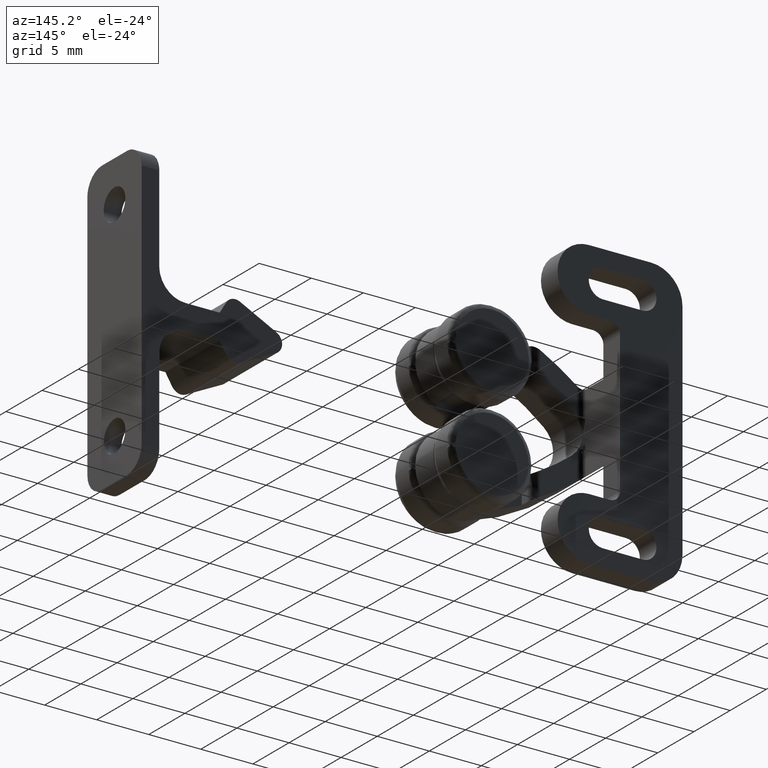
[diagram: clean part render]
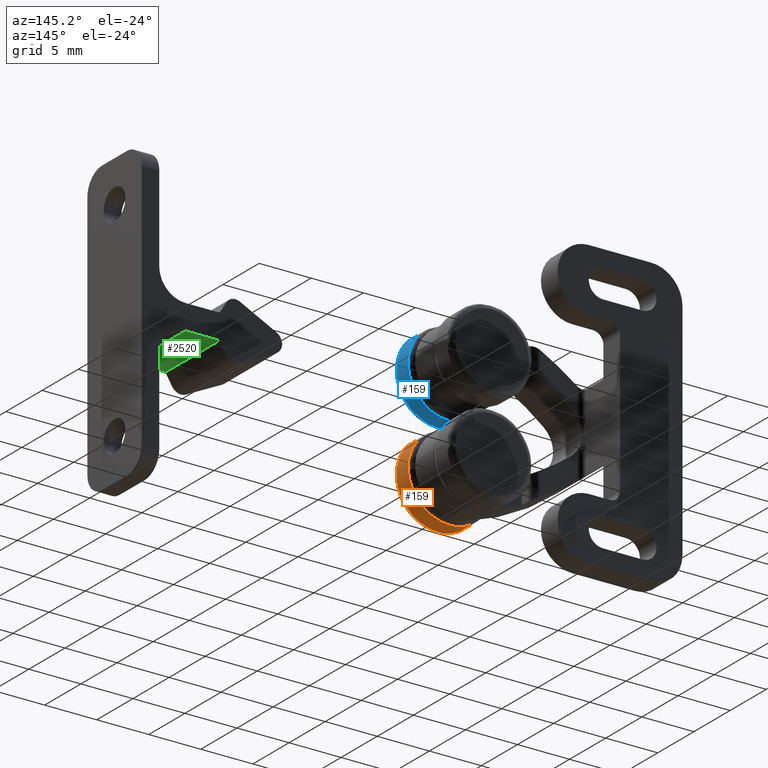
[diagram: same view with three faces highlighted in distinct colors, each labeled with its STEP entity id]
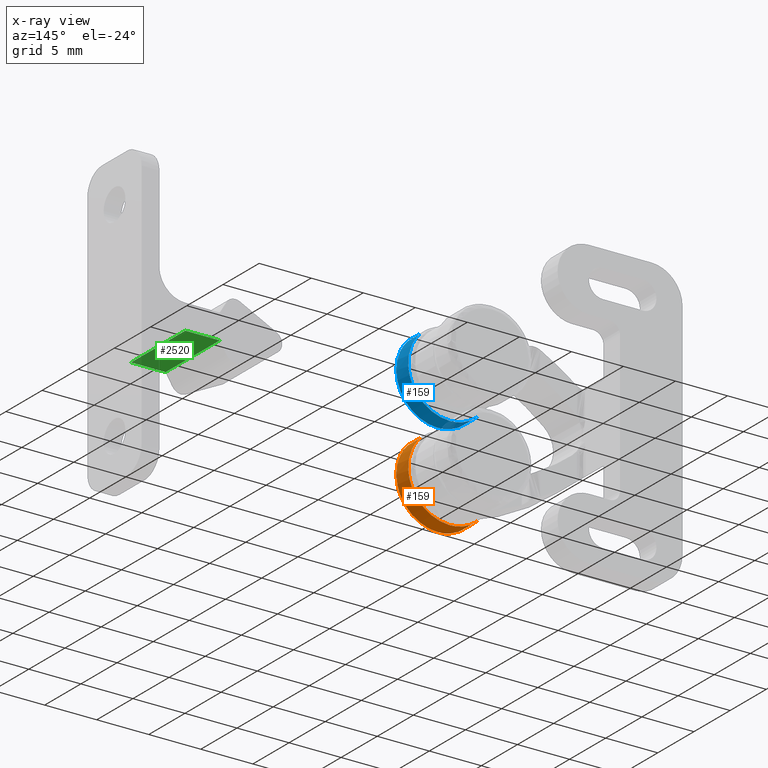
[diagram: x-ray of the same camera — body ghosted, the three highlighted faces saturated]
A machine part, auxiliary view with three faces highlighted in distinct colors.
The next image is the same camera in x-ray (body ghosted, the three faces saturated) — at least one of them is partly hidden behind the body in this view.
Their STEP definitions:

[orange] entity #159 — the highlighted face is a freeform B-spline surface patch.
#44=CARTESIAN_POINT('',(12.760726055684410,-9.808749999279462,-2.914854757615499));
#45=CARTESIAN_POINT('',(15.513379172849758,-9.808749999279463,-5.501697529760492));
#46=CARTESIAN_POINT('',(18.253418302775010,-9.808749999279462,-2.901497484049150));
#47=CARTESIAN_POINT('',(21.154915786824155,-9.808749999279462,-0.148079181274134));
#48=CARTESIAN_POINT('',(18.401497484049148,-9.808749999279462,2.753418302775015));
#49=CARTESIAN_POINT('',(12.760726055684410,-11.542281250813645,-2.914854757615499));
#50=CARTESIAN_POINT('',(15.513379172849758,-11.542281250813637,-5.501697529760492));
#51=CARTESIAN_POINT('',(18.253418302775010,-11.542281250813639,-2.901497484049150));
#52=CARTESIAN_POINT('',(21.154915786824155,-11.542281250813637,-0.148079181274134));
#53=CARTESIAN_POINT('',(18.401497484049148,-11.542281250813639,2.753418302775015));
#61=(BOUNDED_SURFACE()B_SPLINE_SURFACE(2,1,((#44,#49),(#45,#50),(#46,#51),(#47,#52),(#48,#53)),.UNSPECIFIED.,.F.,.F.,.U.)B_SPLINE_SURFACE_WITH_KNOTS((3,2,3),(2,2),(0.0,6.362320318050738,12.989737316020260),(0.0,1.0),.UNSPECIFIED.)GEOMETRIC_REPRESENTATION_ITEM()RATIONAL_B_SPLINE_SURFACE(((0.977505800795127,0.977505800795127),(0.718822509939086,0.718822509939086),(1.0,1.0),(0.707106781186548,0.707106781186548),(1.0,1.0)))REPRESENTATION_ITEM('')SURFACE());
#62=CARTESIAN_POINT('',(12.760726033391810,-11.499999999964500,-2.914854736665723));
#63=VERTEX_POINT('',#62);
#64=CARTESIAN_POINT('',(15.500000000000000,-11.500000000000000,-4.0));
#65=VERTEX_POINT('',#64);
#66=CARTESIAN_POINT('',(12.760726033391810,-11.499999999964500,-2.914854736665723));
#67=CARTESIAN_POINT('',(13.024047772024240,-11.499999999925290,-3.162501344198948));
#68=CARTESIAN_POINT('',(13.502186852472020,-11.499999999886690,-3.502707219051742));
#69=CARTESIAN_POINT('',(14.184635568627320,-11.499999999889869,-3.791814424022823));
#70=CARTESIAN_POINT('',(14.808522952792430,-11.499999999922350,-3.957313997093072));
#71=CARTESIAN_POINT('',(15.232828271988289,-11.499999999965050,-4.000041486523225));
#72=CARTESIAN_POINT('',(15.500000000000000,-11.500000000000000,-4.0));
#73=B_SPLINE_CURVE_WITH_KNOTS('',3,(#66,#67,#68,#69,#70,#71,#72),.UNSPECIFIED.,.F.,.U.,(4,1,1,1,4),(9.511587E-009,1.084394768548775,1.744453210007001,2.215929146586945,3.017435822828742),.UNSPECIFIED.);
#74=EDGE_CURVE('',#63,#65,#73,.T.);
#75=ORIENTED_EDGE('',*,*,#74,.F.);
#76=CARTESIAN_POINT('',(12.760726070855910,-9.850000000021005,-2.914854771873121));
#77=VERTEX_POINT('',#76);
#78=CARTESIAN_POINT('',(12.760726070855910,-9.850000000021005,-2.914854771873121));
#79=CARTESIAN_POINT('',(12.760726033391810,-11.499999999964500,-2.914854736665723));
#80=QUASI_UNIFORM_CURVE('',1,(#78,#79),.UNSPECIFIED.,.F.,.U.);
#81=EDGE_CURVE('',#77,#63,#80,.T.);
#82=ORIENTED_EDGE('',*,*,#81,.F.);
#83=CARTESIAN_POINT('',(15.500000000000000,-9.850000000000000,-4.0));
#84=VERTEX_POINT('',#83);
#85=CARTESIAN_POINT('',(12.760726070855910,-9.850000000021005,-2.914854771873121));
#86=CARTESIAN_POINT('',(12.932495578686000,-9.850000000046761,-3.076308001416002));
#87=CARTESIAN_POINT('',(13.267481290167870,-9.850000000082021,-3.339456813898130));
#88=CARTESIAN_POINT('',(13.777136618862610,-9.850000000101572,-3.622417105340806));
#89=CARTESIAN_POINT('',(14.274776435261471,-9.850000000097767,-3.819552674851656));
#90=CARTESIAN_POINT('',(14.839944868293040,-9.850000000070011,-3.962378612511117));
#91=CARTESIAN_POINT('',(15.264263161759370,-9.850000000028858,-4.000022038407404));
#92=CARTESIAN_POINT('',(15.500000000000000,-9.850000000000000,-4.0));
#93=B_SPLINE_CURVE_WITH_KNOTS('',3,(#85,#86,#87,#88,#89,#90,#91,#92),.UNSPECIFIED.,.F.,.U.,(4,1,1,1,1,4),(9.510134E-009,0.707211227877700,1.272982600642694,1.744453180284088,2.310224553049056,3.017435771416567),.UNSPECIFIED.);
#94=EDGE_CURVE('',#77,#84,#93,.T.);
#95=ORIENTED_EDGE('',*,*,#94,.T.);
#96=CARTESIAN_POINT('',(19.490262695357380,-9.849999999321035,-0.278933006363975));
#97=VERTEX_POINT('',#96);
#98=CARTESIAN_POINT('',(15.500000000000000,-9.850000000000000,-4.0));
#99=CARTESIAN_POINT('',(15.781439561110020,-9.850000000000023,-4.000045591497659));
#100=CARTESIAN_POINT('',(16.266118035454010,-9.849999999990628,-3.948620662839952));
#101=CARTESIAN_POINT('',(17.018048971052771,-9.849999999950086,-3.726476236904639));
#102=CARTESIAN_POINT('',(17.675656165085879,-9.849999999888373,-3.388373250150611));
#103=CARTESIAN_POINT('',(18.202845105458461,-9.849999999811503,-2.966938404348572));
#104=CARTESIAN_POINT('',(18.610919332897961,-9.849999999732479,-2.533964436474703));
#105=CARTESIAN_POINT('',(18.966906153174410,-9.849999999641675,-2.036344754550885));
#106=CARTESIAN_POINT('',(19.332027294518362,-9.849999999502181,-1.270915555114796));
#107=CARTESIAN_POINT('',(19.464229860244231,-9.849999999389070,-0.653294697435330));
#108=CARTESIAN_POINT('',(19.490262695357380,-9.849999999321035,-0.278933006363975));
#109=B_SPLINE_CURVE_WITH_KNOTS('',3,(#98,#99,#100,#101,#102,#103,#104,#105,#106,#107,#108),.UNSPECIFIED.,.F.,.U.,(4,1,1,1,1,1,1,1,4),(0.000000032846850,0.844312565198114,1.454108349122402,2.345347052749658,3.048926396836228,3.471087599734728,4.127786367789641,4.878303860757968,6.004060141886988),.UNSPECIFIED.);
#110=EDGE_CURVE('',#84,#97,#109,.T.);
#111=ORIENTED_EDGE('',*,*,#110,.T.);
#112=CARTESIAN_POINT('',(18.401497465129580,-9.850000000007878,2.753418322712083));
#113=VERTEX_POINT('',#112);
#114=CARTESIAN_POINT('',(19.490262695357380,-9.849999999321035,-0.278933006363975));
#115=CARTESIAN_POINT('',(19.510792806335751,-9.849999999402257,0.013960401787686));
#116=CARTESIAN_POINT('',(19.490388989056211,-9.849999999535234,0.517444974603804));
#117=CARTESIAN_POINT('',(19.329739837131910,-9.849999999702353,1.209285478175771));
#118=CARTESIAN_POINT('',(19.025111540107520,-9.849999999869379,1.964363367162402));
#119=CARTESIAN_POINT('',(18.675071554209978,-9.849999999962783,2.465372427187162));
#120=CARTESIAN_POINT('',(18.401497465129580,-9.850000000007878,2.753418322712083));
#121=B_SPLINE_CURVE_WITH_KNOTS('',3,(#114,#115,#116,#117,#118,#119,#120),.UNSPECIFIED.,.F.,.U.,(4,1,1,1,4),(7.648555E-009,0.880827983811205,1.502594531706793,2.124345561572742,3.316055672203500),.UNSPECIFIED.);
#122=EDGE_CURVE('',#97,#113,#121,.T.);
#123=ORIENTED_EDGE('',*,*,#122,.T.);
#124=CARTESIAN_POINT('',(18.401497490669499,-11.500000000006720,2.753418295798620));
#125=VERTEX_POINT('',#124);
#126=CARTESIAN_POINT('',(18.401497465129580,-9.850000000007878,2.753418322712083));
#127=CARTESIAN_POINT('',(18.401497490669499,-11.500000000006720,2.753418295798620));
#128=QUASI_UNIFORM_CURVE('',1,(#126,#127),.UNSPECIFIED.,.F.,.U.);
#129=EDGE_CURVE('',#113,#125,#128,.T.);
#130=ORIENTED_EDGE('',*,*,#129,.T.);
#131=CARTESIAN_POINT('',(19.499684176815251,-11.500000000776220,-0.050264159534467));
#132=VERTEX_POINT('',#131);
#133=CARTESIAN_POINT('',(19.499684176815251,-11.500000000776220,-0.050264159534467));
#134=CARTESIAN_POINT('',(19.504009211174260,-11.500000000664580,0.287373596959121));
#135=CARTESIAN_POINT('',(19.443009577378881,-11.500000000498259,0.818734176007481));
#136=CARTESIAN_POINT('',(19.219567966731120,-11.500000000302350,1.508918928883813));
#137=CARTESIAN_POINT('',(18.913243279380691,-11.500000000140419,2.130767846992689));
#138=CARTESIAN_POINT('',(18.611840389023261,-11.500000000050321,2.531857244807986));
#139=CARTESIAN_POINT('',(18.401497490669499,-11.500000000006720,2.753418295798620));
#140=B_SPLINE_CURVE_WITH_KNOTS('',3,(#133,#134,#135,#136,#137,#138,#139),.UNSPECIFIED.,.F.,.U.,(4,1,1,1,4),(8.768160E-009,1.012975912711092,1.591810567255463,2.170657121034766,3.087157076118183),.UNSPECIFIED.);
#141=EDGE_CURVE('',#132,#125,#140,.T.);
#142=ORIENTED_EDGE('',*,*,#141,.F.);
#143=CARTESIAN_POINT('',(15.500000000000000,-11.500000000000000,-4.0));
#144=CARTESIAN_POINT('',(15.905818169454941,-11.499999999999980,-4.000209581192784));
#145=CARTESIAN_POINT('',(16.538717669116679,-11.500000000019099,-3.902801670893391));
#146=CARTESIAN_POINT('',(17.292207542379849,-11.500000000079909,-3.593398860518228));
#147=CARTESIAN_POINT('',(17.849756604899792,-11.500000000145830,-3.257883078830806));
#148=CARTESIAN_POINT('',(18.385844005341959,-11.500000000234570,-2.806411201252404));
#149=CARTESIAN_POINT('',(18.845308850792581,-11.500000000347161,-2.233570002591871));
#150=CARTESIAN_POINT('',(19.161477546571511,-11.500000000462659,-1.645601738484164));
#151=CARTESIAN_POINT('',(19.416258965668419,-11.500000000601050,-0.941967310922558));
#152=CARTESIAN_POINT('',(19.495305501822170,-11.500000000705979,-0.407343487640484));
#153=CARTESIAN_POINT('',(19.499684176815251,-11.500000000776220,-0.050264159534467));
#154=B_SPLINE_CURVE_WITH_KNOTS('',3,(#143,#144,#145,#146,#147,#148,#149,#150,#151,#152,#153),.UNSPECIFIED.,.F.,.U.,(4,1,1,1,1,1,1,1,4),(0.000000031241953,1.217374682672507,1.899108108013019,2.434749664392943,3.165165160348979,3.992981213291979,4.626023477674091,5.161674580694572,6.232958310442228),.UNSPECIFIED.);
#155=EDGE_CURVE('',#65,#132,#154,.T.);
#156=ORIENTED_EDGE('',*,*,#155,.F.);
#157=EDGE_LOOP('',(#75,#82,#95,#111,#123,#130,#142,#156));
#158=FACE_OUTER_BOUND('',#157,.T.);
#159=ADVANCED_FACE('',(#158),#61,.T.);

[blue] entity #159 — the highlighted face is a freeform B-spline surface patch.
#44=CARTESIAN_POINT('',(12.760726055684410,-9.808749999279462,-2.914854757615499));
#45=CARTESIAN_POINT('',(15.513379172849758,-9.808749999279463,-5.501697529760492));
#46=CARTESIAN_POINT('',(18.253418302775010,-9.808749999279462,-2.901497484049150));
#47=CARTESIAN_POINT('',(21.154915786824155,-9.808749999279462,-0.148079181274134));
#48=CARTESIAN_POINT('',(18.401497484049148,-9.808749999279462,2.753418302775015));
#49=CARTESIAN_POINT('',(12.760726055684410,-11.542281250813645,-2.914854757615499));
#50=CARTESIAN_POINT('',(15.513379172849758,-11.542281250813637,-5.501697529760492));
#51=CARTESIAN_POINT('',(18.253418302775010,-11.542281250813639,-2.901497484049150));
#52=CARTESIAN_POINT('',(21.154915786824155,-11.542281250813637,-0.148079181274134));
#53=CARTESIAN_POINT('',(18.401497484049148,-11.542281250813639,2.753418302775015));
#61=(BOUNDED_SURFACE()B_SPLINE_SURFACE(2,1,((#44,#49),(#45,#50),(#46,#51),(#47,#52),(#48,#53)),.UNSPECIFIED.,.F.,.F.,.U.)B_SPLINE_SURFACE_WITH_KNOTS((3,2,3),(2,2),(0.0,6.362320318050738,12.989737316020260),(0.0,1.0),.UNSPECIFIED.)GEOMETRIC_REPRESENTATION_ITEM()RATIONAL_B_SPLINE_SURFACE(((0.977505800795127,0.977505800795127),(0.718822509939086,0.718822509939086),(1.0,1.0),(0.707106781186548,0.707106781186548),(1.0,1.0)))REPRESENTATION_ITEM('')SURFACE());
#62=CARTESIAN_POINT('',(12.760726033391810,-11.499999999964500,-2.914854736665723));
#63=VERTEX_POINT('',#62);
#64=CARTESIAN_POINT('',(15.500000000000000,-11.500000000000000,-4.0));
#65=VERTEX_POINT('',#64);
#66=CARTESIAN_POINT('',(12.760726033391810,-11.499999999964500,-2.914854736665723));
#67=CARTESIAN_POINT('',(13.024047772024240,-11.499999999925290,-3.162501344198948));
#68=CARTESIAN_POINT('',(13.502186852472020,-11.499999999886690,-3.502707219051742));
#69=CARTESIAN_POINT('',(14.184635568627320,-11.499999999889869,-3.791814424022823));
#70=CARTESIAN_POINT('',(14.808522952792430,-11.499999999922350,-3.957313997093072));
#71=CARTESIAN_POINT('',(15.232828271988289,-11.499999999965050,-4.000041486523225));
#72=CARTESIAN_POINT('',(15.500000000000000,-11.500000000000000,-4.0));
#73=B_SPLINE_CURVE_WITH_KNOTS('',3,(#66,#67,#68,#69,#70,#71,#72),.UNSPECIFIED.,.F.,.U.,(4,1,1,1,4),(9.511587E-009,1.084394768548775,1.744453210007001,2.215929146586945,3.017435822828742),.UNSPECIFIED.);
#74=EDGE_CURVE('',#63,#65,#73,.T.);
#75=ORIENTED_EDGE('',*,*,#74,.F.);
#76=CARTESIAN_POINT('',(12.760726070855910,-9.850000000021005,-2.914854771873121));
#77=VERTEX_POINT('',#76);
#78=CARTESIAN_POINT('',(12.760726070855910,-9.850000000021005,-2.914854771873121));
#79=CARTESIAN_POINT('',(12.760726033391810,-11.499999999964500,-2.914854736665723));
#80=QUASI_UNIFORM_CURVE('',1,(#78,#79),.UNSPECIFIED.,.F.,.U.);
#81=EDGE_CURVE('',#77,#63,#80,.T.);
#82=ORIENTED_EDGE('',*,*,#81,.F.);
#83=CARTESIAN_POINT('',(15.500000000000000,-9.850000000000000,-4.0));
#84=VERTEX_POINT('',#83);
#85=CARTESIAN_POINT('',(12.760726070855910,-9.850000000021005,-2.914854771873121));
#86=CARTESIAN_POINT('',(12.932495578686000,-9.850000000046761,-3.076308001416002));
#87=CARTESIAN_POINT('',(13.267481290167870,-9.850000000082021,-3.339456813898130));
#88=CARTESIAN_POINT('',(13.777136618862610,-9.850000000101572,-3.622417105340806));
#89=CARTESIAN_POINT('',(14.274776435261471,-9.850000000097767,-3.819552674851656));
#90=CARTESIAN_POINT('',(14.839944868293040,-9.850000000070011,-3.962378612511117));
#91=CARTESIAN_POINT('',(15.264263161759370,-9.850000000028858,-4.000022038407404));
#92=CARTESIAN_POINT('',(15.500000000000000,-9.850000000000000,-4.0));
#93=B_SPLINE_CURVE_WITH_KNOTS('',3,(#85,#86,#87,#88,#89,#90,#91,#92),.UNSPECIFIED.,.F.,.U.,(4,1,1,1,1,4),(9.510134E-009,0.707211227877700,1.272982600642694,1.744453180284088,2.310224553049056,3.017435771416567),.UNSPECIFIED.);
#94=EDGE_CURVE('',#77,#84,#93,.T.);
#95=ORIENTED_EDGE('',*,*,#94,.T.);
#96=CARTESIAN_POINT('',(19.490262695357380,-9.849999999321035,-0.278933006363975));
#97=VERTEX_POINT('',#96);
#98=CARTESIAN_POINT('',(15.500000000000000,-9.850000000000000,-4.0));
#99=CARTESIAN_POINT('',(15.781439561110020,-9.850000000000023,-4.000045591497659));
#100=CARTESIAN_POINT('',(16.266118035454010,-9.849999999990628,-3.948620662839952));
#101=CARTESIAN_POINT('',(17.018048971052771,-9.849999999950086,-3.726476236904639));
#102=CARTESIAN_POINT('',(17.675656165085879,-9.849999999888373,-3.388373250150611));
#103=CARTESIAN_POINT('',(18.202845105458461,-9.849999999811503,-2.966938404348572));
#104=CARTESIAN_POINT('',(18.610919332897961,-9.849999999732479,-2.533964436474703));
#105=CARTESIAN_POINT('',(18.966906153174410,-9.849999999641675,-2.036344754550885));
#106=CARTESIAN_POINT('',(19.332027294518362,-9.849999999502181,-1.270915555114796));
#107=CARTESIAN_POINT('',(19.464229860244231,-9.849999999389070,-0.653294697435330));
#108=CARTESIAN_POINT('',(19.490262695357380,-9.849999999321035,-0.278933006363975));
#109=B_SPLINE_CURVE_WITH_KNOTS('',3,(#98,#99,#100,#101,#102,#103,#104,#105,#106,#107,#108),.UNSPECIFIED.,.F.,.U.,(4,1,1,1,1,1,1,1,4),(0.000000032846850,0.844312565198114,1.454108349122402,2.345347052749658,3.048926396836228,3.471087599734728,4.127786367789641,4.878303860757968,6.004060141886988),.UNSPECIFIED.);
#110=EDGE_CURVE('',#84,#97,#109,.T.);
#111=ORIENTED_EDGE('',*,*,#110,.T.);
#112=CARTESIAN_POINT('',(18.401497465129580,-9.850000000007878,2.753418322712083));
#113=VERTEX_POINT('',#112);
#114=CARTESIAN_POINT('',(19.490262695357380,-9.849999999321035,-0.278933006363975));
#115=CARTESIAN_POINT('',(19.510792806335751,-9.849999999402257,0.013960401787686));
#116=CARTESIAN_POINT('',(19.490388989056211,-9.849999999535234,0.517444974603804));
#117=CARTESIAN_POINT('',(19.329739837131910,-9.849999999702353,1.209285478175771));
#118=CARTESIAN_POINT('',(19.025111540107520,-9.849999999869379,1.964363367162402));
#119=CARTESIAN_POINT('',(18.675071554209978,-9.849999999962783,2.465372427187162));
#120=CARTESIAN_POINT('',(18.401497465129580,-9.850000000007878,2.753418322712083));
#121=B_SPLINE_CURVE_WITH_KNOTS('',3,(#114,#115,#116,#117,#118,#119,#120),.UNSPECIFIED.,.F.,.U.,(4,1,1,1,4),(7.648555E-009,0.880827983811205,1.502594531706793,2.124345561572742,3.316055672203500),.UNSPECIFIED.);
#122=EDGE_CURVE('',#97,#113,#121,.T.);
#123=ORIENTED_EDGE('',*,*,#122,.T.);
#124=CARTESIAN_POINT('',(18.401497490669499,-11.500000000006720,2.753418295798620));
#125=VERTEX_POINT('',#124);
#126=CARTESIAN_POINT('',(18.401497465129580,-9.850000000007878,2.753418322712083));
#127=CARTESIAN_POINT('',(18.401497490669499,-11.500000000006720,2.753418295798620));
#128=QUASI_UNIFORM_CURVE('',1,(#126,#127),.UNSPECIFIED.,.F.,.U.);
#129=EDGE_CURVE('',#113,#125,#128,.T.);
#130=ORIENTED_EDGE('',*,*,#129,.T.);
#131=CARTESIAN_POINT('',(19.499684176815251,-11.500000000776220,-0.050264159534467));
#132=VERTEX_POINT('',#131);
#133=CARTESIAN_POINT('',(19.499684176815251,-11.500000000776220,-0.050264159534467));
#134=CARTESIAN_POINT('',(19.504009211174260,-11.500000000664580,0.287373596959121));
#135=CARTESIAN_POINT('',(19.443009577378881,-11.500000000498259,0.818734176007481));
#136=CARTESIAN_POINT('',(19.219567966731120,-11.500000000302350,1.508918928883813));
#137=CARTESIAN_POINT('',(18.913243279380691,-11.500000000140419,2.130767846992689));
#138=CARTESIAN_POINT('',(18.611840389023261,-11.500000000050321,2.531857244807986));
#139=CARTESIAN_POINT('',(18.401497490669499,-11.500000000006720,2.753418295798620));
#140=B_SPLINE_CURVE_WITH_KNOTS('',3,(#133,#134,#135,#136,#137,#138,#139),.UNSPECIFIED.,.F.,.U.,(4,1,1,1,4),(8.768160E-009,1.012975912711092,1.591810567255463,2.170657121034766,3.087157076118183),.UNSPECIFIED.);
#141=EDGE_CURVE('',#132,#125,#140,.T.);
#142=ORIENTED_EDGE('',*,*,#141,.F.);
#143=CARTESIAN_POINT('',(15.500000000000000,-11.500000000000000,-4.0));
#144=CARTESIAN_POINT('',(15.905818169454941,-11.499999999999980,-4.000209581192784));
#145=CARTESIAN_POINT('',(16.538717669116679,-11.500000000019099,-3.902801670893391));
#146=CARTESIAN_POINT('',(17.292207542379849,-11.500000000079909,-3.593398860518228));
#147=CARTESIAN_POINT('',(17.849756604899792,-11.500000000145830,-3.257883078830806));
#148=CARTESIAN_POINT('',(18.385844005341959,-11.500000000234570,-2.806411201252404));
#149=CARTESIAN_POINT('',(18.845308850792581,-11.500000000347161,-2.233570002591871));
#150=CARTESIAN_POINT('',(19.161477546571511,-11.500000000462659,-1.645601738484164));
#151=CARTESIAN_POINT('',(19.416258965668419,-11.500000000601050,-0.941967310922558));
#152=CARTESIAN_POINT('',(19.495305501822170,-11.500000000705979,-0.407343487640484));
#153=CARTESIAN_POINT('',(19.499684176815251,-11.500000000776220,-0.050264159534467));
#154=B_SPLINE_CURVE_WITH_KNOTS('',3,(#143,#144,#145,#146,#147,#148,#149,#150,#151,#152,#153),.UNSPECIFIED.,.F.,.U.,(4,1,1,1,1,1,1,1,4),(0.000000031241953,1.217374682672507,1.899108108013019,2.434749664392943,3.165165160348979,3.992981213291979,4.626023477674091,5.161674580694572,6.232958310442228),.UNSPECIFIED.);
#155=EDGE_CURVE('',#65,#132,#154,.T.);
#156=ORIENTED_EDGE('',*,*,#155,.F.);
#157=EDGE_LOOP('',(#75,#82,#95,#111,#123,#130,#142,#156));
#158=FACE_OUTER_BOUND('',#157,.T.);
#159=ADVANCED_FACE('',(#158),#61,.T.);

[green] entity #2520 — the highlighted face is a freeform B-spline surface patch.
#2078=CARTESIAN_POINT('',(44.805993672742247,-4.250000000000085,-1.200000000000000));
#2079=VERTEX_POINT('',#2078);
#2094=CARTESIAN_POINT('',(41.505993672742250,-4.250000000000085,-1.200000000000000));
#2095=VERTEX_POINT('',#2094);
#2096=CARTESIAN_POINT('',(44.805993672742247,-4.250000000000085,-1.200000000000000));
#2097=CARTESIAN_POINT('',(41.505993672742250,-4.250000000000085,-1.200000000000000));
#2098=QUASI_UNIFORM_CURVE('',1,(#2096,#2097),.UNSPECIFIED.,.F.,.U.);
#2099=EDGE_CURVE('',#2079,#2095,#2098,.T.);
#2315=CARTESIAN_POINT('',(41.505993672742250,-11.750000000000000,-1.200000000000000));
#2316=VERTEX_POINT('',#2315);
#2322=CARTESIAN_POINT('',(44.805993672742247,-11.750000000000000,-1.200000000000000));
#2323=VERTEX_POINT('',#2322);
#2324=CARTESIAN_POINT('',(44.805993672742247,-11.750000000000000,-1.200000000000000));
#2325=CARTESIAN_POINT('',(41.505993672742250,-11.750000000000000,-1.200000000000000));
#2326=QUASI_UNIFORM_CURVE('',1,(#2324,#2325),.UNSPECIFIED.,.F.,.U.);
#2327=EDGE_CURVE('',#2323,#2316,#2326,.T.);
#2495=CARTESIAN_POINT('',(41.505993672742250,-11.750000000000000,-1.200000000000000));
#2496=CARTESIAN_POINT('',(41.505993672742250,-4.250000000000085,-1.200000000000000));
#2497=QUASI_UNIFORM_CURVE('',1,(#2495,#2496),.UNSPECIFIED.,.F.,.U.);
#2498=EDGE_CURVE('',#2316,#2095,#2497,.T.);
#2505=CARTESIAN_POINT('',(44.970827090857952,-12.124624985463541,-1.200000000000000));
#2506=CARTESIAN_POINT('',(41.341157923786923,-12.124624985463541,-1.200000000000000));
#2507=CARTESIAN_POINT('',(44.970827090857952,-3.875374813370868,-1.200000000000000));
#2508=CARTESIAN_POINT('',(41.341157923786923,-3.875374813370868,-1.200000000000000));
#2509=B_SPLINE_SURFACE_WITH_KNOTS('',1,1,((#2505,#2507),(#2506,#2508)),.UNSPECIFIED.,.F.,.F.,.U.,(2,2),(2,2),(0.0,3.629669167071022),(0.0,8.249250172092673),.UNSPECIFIED.);
#2510=ORIENTED_EDGE('',*,*,#2099,.F.);
#2511=CARTESIAN_POINT('',(44.805993672742247,-11.750000000000000,-1.200000000000000));
#2512=CARTESIAN_POINT('',(44.805993672742247,-4.250000000000085,-1.200000000000000));
#2513=QUASI_UNIFORM_CURVE('',1,(#2511,#2512),.UNSPECIFIED.,.F.,.U.);
#2514=EDGE_CURVE('',#2323,#2079,#2513,.T.);
#2515=ORIENTED_EDGE('',*,*,#2514,.F.);
#2516=ORIENTED_EDGE('',*,*,#2327,.T.);
#2517=ORIENTED_EDGE('',*,*,#2498,.T.);
#2518=EDGE_LOOP('',(#2510,#2515,#2516,#2517));
#2519=FACE_OUTER_BOUND('',#2518,.T.);
#2520=ADVANCED_FACE('',(#2519),#2509,.T.);